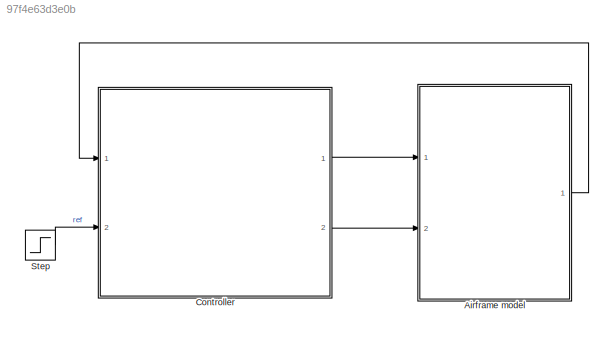
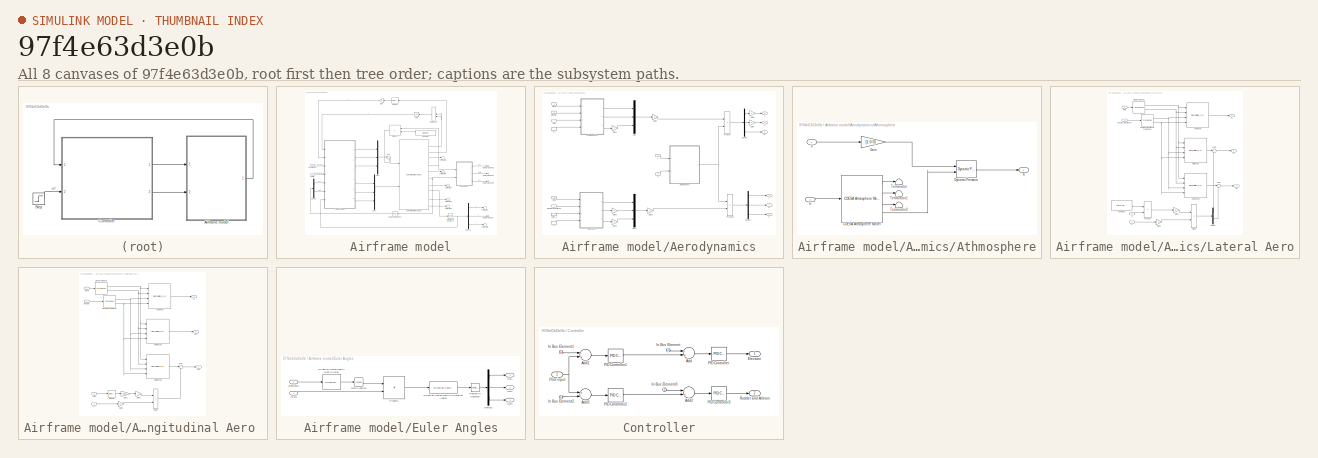
[diagram: thumbnail index - all 8 canvases of the model, root first then tree order]
MODEL slx_97f4e63d3e0b
KIND model
CONFIG AbsTol = auto
CONFIG EnableMultiTasking = off
CONFIG FixedStep = auto
CONFIG MaxStep = auto
CONFIG MinStep = auto
CONFIG RelTol = 1e-3
CONFIG SampleTimeConstraint = Unconstrained
CONFIG Solver = VariableStepAuto
CONFIG SolverName = VariableStepAuto
CONFIG StartTime = 0.0
CONFIG StopTime = 10.0
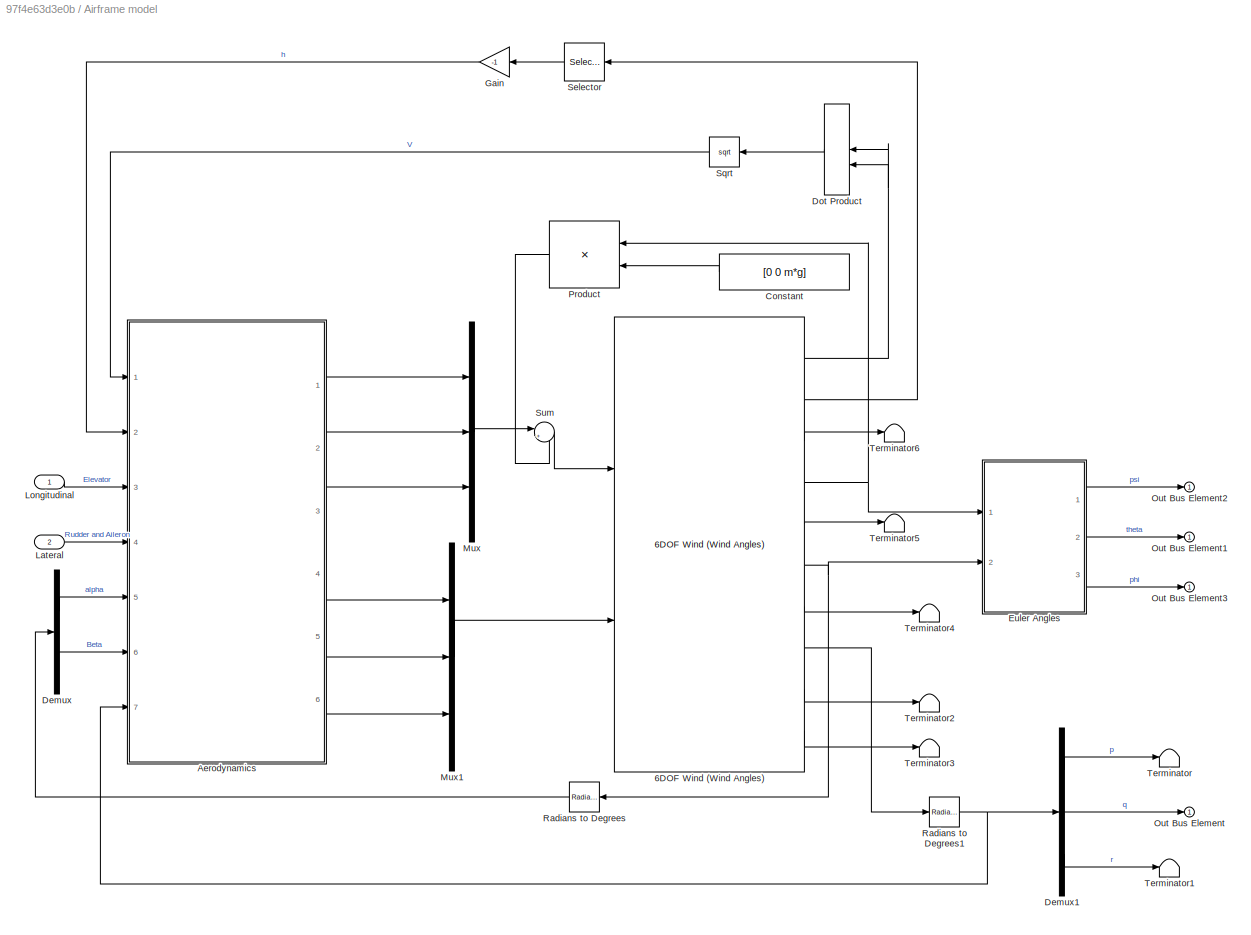
BLOCK [SubSystem] Airframe model
  Ports = [2, 1]
  RequestExecContextInheritance = off
BLOCK [Reference] Airframe model/6DOF Wind (Wind Angles)  REF=aerolib6dof2/6DOF Wind (Wind Angles)
  Ports = [2, 10]
  SourceBlock = aerolib6dof2/6DOF Wind (Wind Angles)
  SourceProductBaseCode = AE
  SourceProductName = Aerospace Blockset
  SourceType = 6DOF EoM (Wind Axis)
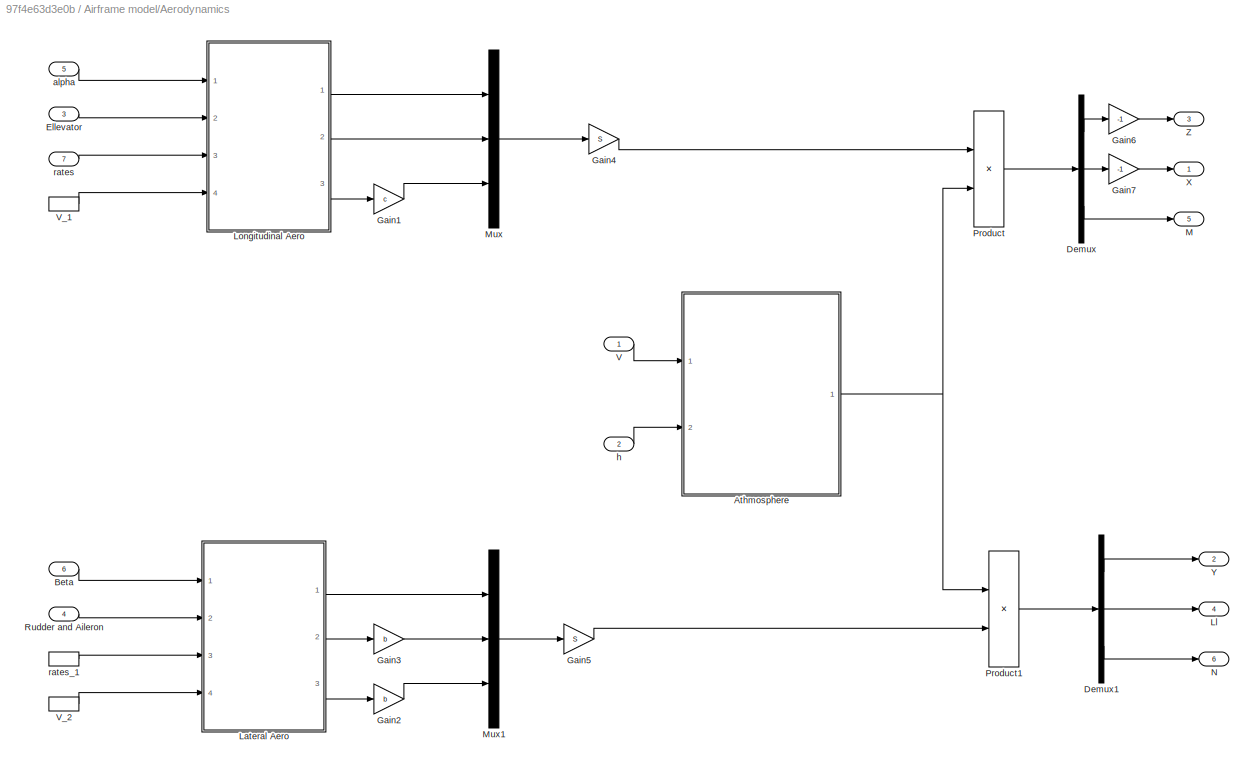
BLOCK [SubSystem] Airframe model/Aerodynamics
  Ports = [7, 6]
  RequestExecContextInheritance = off
BLOCK [SubSystem] Airframe model/Aerodynamics/Athmosphere
  Ports = [2, 1]
  RequestExecContextInheritance = off
BLOCK [Reference] Airframe model/Aerodynamics/Athmosphere/COESA Atmosphere Model  REF=aerolibatmos2/COESA Atmosphere Model
  Ports = [1, 4]
  SourceBlock = aerolibatmos2/COESA Atmosphere Model
  SourceProductBaseCode = AE
  SourceProductName = Aerospace Blockset
  SourceType = Atmosphere Model
BLOCK [Reference] Airframe model/Aerodynamics/Athmosphere/Dynamic Pressure  REF=aerolibasang/Dynamic Pressure
  Ports = [2, 1]
  SourceBlock = aerolibasang/Dynamic Pressure
  SourceProductBaseCode = AE
  SourceProductName = Aerospace Blockset
  SourceType = Dynamic Pressure
BLOCK [Gain] Airframe model/Aerodynamics/Athmosphere/Gain
  Gain = [1 0 0]
  OutDataTypeStr = Inherit: Inherit via internal rule
  ParamDataTypeStr = Inherit: Inherit via internal rule
  SaturateOnIntegerOverflow = off
BLOCK [Terminator] Airframe model/Aerodynamics/Athmosphere/Terminator
BLOCK [Terminator] Airframe model/Aerodynamics/Athmosphere/Terminator1
BLOCK [Terminator] Airframe model/Aerodynamics/Athmosphere/Terminator2
BLOCK [Inport] Airframe model/Aerodynamics/Athmosphere/V
  IconDisplay = Port number
BLOCK [Inport] Airframe model/Aerodynamics/Athmosphere/h
  IconDisplay = Port number
  Port = 2
BLOCK [Outport] Airframe model/Aerodynamics/Athmosphere/q
  IconDisplay = Port number
BLOCK [Inport] Airframe model/Aerodynamics/Beta
  IconDisplay = Port number
  Port = 6
BLOCK [Demux] Airframe model/Aerodynamics/Demux
  DisplayOption = bar
  Outputs = 3
  Ports = [1, 3]
BLOCK [Demux] Airframe model/Aerodynamics/Demux1
  DisplayOption = bar
  Outputs = 3
  Ports = [1, 3]
BLOCK [Inport] Airframe model/Aerodynamics/Ellevator
  IconDisplay = Port number
  Port = 3
BLOCK [Gain] Airframe model/Aerodynamics/Gain1
  Gain = c
  OutDataTypeStr = Inherit: Inherit via internal rule
  ParamDataTypeStr = Inherit: Inherit via internal rule
  SaturateOnIntegerOverflow = off
BLOCK [Gain] Airframe model/Aerodynamics/Gain2
  Gain = b
  OutDataTypeStr = Inherit: Inherit via internal rule
  ParamDataTypeStr = Inherit: Inherit via internal rule
  SaturateOnIntegerOverflow = off
BLOCK [Gain] Airframe model/Aerodynamics/Gain3
  Gain = b
  OutDataTypeStr = Inherit: Inherit via internal rule
  ParamDataTypeStr = Inherit: Inherit via internal rule
  SaturateOnIntegerOverflow = off
BLOCK [Gain] Airframe model/Aerodynamics/Gain4
  Gain = S
  OutDataTypeStr = Inherit: Inherit via internal rule
  ParamDataTypeStr = Inherit: Inherit via internal rule
  SaturateOnIntegerOverflow = off
BLOCK [Gain] Airframe model/Aerodynamics/Gain5
  Gain = S
  OutDataTypeStr = Inherit: Inherit via internal rule
  ParamDataTypeStr = Inherit: Inherit via internal rule
  SaturateOnIntegerOverflow = off
BLOCK [Gain] Airframe model/Aerodynamics/Gain6
  Gain = -1
  OutDataTypeStr = Inherit: Inherit via internal rule
  ParamDataTypeStr = Inherit: Inherit via internal rule
  SaturateOnIntegerOverflow = off
BLOCK [Gain] Airframe model/Aerodynamics/Gain7
  Gain = -1
  OutDataTypeStr = Inherit: Inherit via internal rule
  ParamDataTypeStr = Inherit: Inherit via internal rule
  SaturateOnIntegerOverflow = off
BLOCK [SubSystem] Airframe model/Aerodynamics/Lateral Aero
  Ports = [4, 3]
  RequestExecContextInheritance = off
BLOCK [Inport] Airframe model/Aerodynamics/Lateral Aero/Beta
  IconDisplay = Port number
BLOCK [PreLookup] Airframe model/Aerodynamics/Lateral Aero/Beta prelookup 
  BreakpointsData = Beta
  ExtrapMethod = Linear
  InputPortMap = u0
  Ports = [1, 2]
BLOCK [Outport] Airframe model/Aerodynamics/Lateral Aero/CY
  IconDisplay = Port number
BLOCK [Interpolation_n-D] Airframe model/Aerodynamics/Lateral Aero/CY lookup
  InputPortMap = u0,u1,u2,u3
  IntermediateResultsDataTypeStr = Inherit: Inherit via internal rule
  InternalRulePriority = Speed
  Ports = [4, 1]
  Table = CY
BLOCK [Outport] Airframe model/Aerodynamics/Lateral Aero/Cl
  IconDisplay = Port number
  Port = 2
BLOCK [Interpolation_n-D] Airframe model/Aerodynamics/Lateral Aero/Cl lookup1
  InputPortMap = u0,u1,u2,u3
  IntermediateResultsDataTypeStr = Inherit: Inherit via internal rule
  InternalRulePriority = Speed
  Ports = [4, 1]
  Table = Cl
BLOCK [Outport] Airframe model/Aerodynamics/Lateral Aero/Cn
  IconDisplay = Port number
  Port = 3
BLOCK [Interpolation_n-D] Airframe model/Aerodynamics/Lateral Aero/Cn lookup2
  InputPortMap = u0,u1,u2,u3
  IntermediateResultsDataTypeStr = Inherit: Inherit via internal rule
  InternalRulePriority = Speed
  Ports = [4, 1]
  Table = Cn
BLOCK [Constant] Airframe model/Aerodynamics/Lateral Aero/Constant
  Value = [Clp 0 Clr; Cnp 0 Cnr]
BLOCK [Demux] Airframe model/Aerodynamics/Lateral Aero/Demux
  DisplayOption = bar
  Outputs = 2
  Ports = [1, 2]
BLOCK [Product] Airframe model/Aerodynamics/Lateral Aero/Divide
  InputSameDT = off
  Inputs = */
  OutDataTypeStr = Inherit: Inherit via internal rule
  Ports = [2, 1]
  RndMeth = Floor
  SaturateOnIntegerOverflow = off
BLOCK [Gain] Airframe model/Aerodynamics/Lateral Aero/Gain5
  Gain = b
  OutDataTypeStr = Inherit: Inherit via internal rule
  ParamDataTypeStr = Inherit: Inherit via internal rule
  SaturateOnIntegerOverflow = off
BLOCK [Gain] Airframe model/Aerodynamics/Lateral Aero/Gain6
  Gain = 2
  OutDataTypeStr = Inherit: Inherit via internal rule
  ParamDataTypeStr = Inherit: Inherit via internal rule
  SaturateOnIntegerOverflow = off
BLOCK [Product] Airframe model/Aerodynamics/Lateral Aero/Product
  InputSameDT = off
  Multiplication = Matrix(*)
  OutDataTypeStr = Inherit: Inherit via internal rule
  Ports = [2, 1]
  RndMeth = Floor
  SaturateOnIntegerOverflow = off
BLOCK [Inport] Airframe model/Aerodynamics/Lateral Aero/Rudder and Aileron
  IconDisplay = Port number
  Port = 2
BLOCK [PreLookup] Airframe model/Aerodynamics/Lateral Aero/Rudder and Aileron prelookup
  BreakpointsData = Rudder
  ExtrapMethod = Linear
  InputPortMap = u0
  Ports = [1, 2]
BLOCK [Sum] Airframe model/Aerodynamics/Lateral Aero/Sum
  IconShape = round
  InputSameDT = off
  Inputs = |++
  OutDataTypeStr = Inherit: Inherit via internal rule
  Ports = [2, 1]
  SaturateOnIntegerOverflow = off
BLOCK [Sum] Airframe model/Aerodynamics/Lateral Aero/Sum1
  IconShape = round
  InputSameDT = off
  Inputs = |++
  OutDataTypeStr = Inherit: Inherit via internal rule
  Ports = [2, 1]
  SaturateOnIntegerOverflow = off
BLOCK [Inport] Airframe model/Aerodynamics/Lateral Aero/V 
  IconDisplay = Port number
  Port = 4
BLOCK [Inport] Airframe model/Aerodynamics/Lateral Aero/q
  IconDisplay = Port number
  Port = 3
  PortDimensions = 3
BLOCK [Outport] Airframe model/Aerodynamics/Ll
  IconDisplay = Port number
  Port = 4
BLOCK [SubSystem] Airframe model/Aerodynamics/Longitudinal Aero 
  Ports = [4, 3]
  RequestExecContextInheritance = off
BLOCK [Inport] Airframe model/Aerodynamics/Longitudinal Aero /Alpha
  IconDisplay = Port number
BLOCK [PreLookup] Airframe model/Aerodynamics/Longitudinal Aero /Alpha prelookup 
  BreakpointsData = alpha
  ExtrapMethod = Linear
  InputPortMap = u0
  Ports = [1, 2]
BLOCK [Outport] Airframe model/Aerodynamics/Longitudinal Aero /CD
  IconDisplay = Port number
  Port = 2
BLOCK [Interpolation_n-D] Airframe model/Aerodynamics/Longitudinal Aero /CD lookup1
  InputPortMap = u0,u1,u2,u3
  IntermediateResultsDataTypeStr = Inherit: Inherit via internal rule
  InternalRulePriority = Speed
  Ports = [4, 1]
  Table = CD
BLOCK [Outport] Airframe model/Aerodynamics/Longitudinal Aero /CL
  IconDisplay = Port number
BLOCK [Interpolation_n-D] Airframe model/Aerodynamics/Longitudinal Aero /CL lookup
  InputPortMap = u0,u1,u2,u3
  IntermediateResultsDataTypeStr = Inherit: Inherit via internal rule
  InternalRulePriority = Speed
  Ports = [4, 1]
  Table = CL
BLOCK [Outport] Airframe model/Aerodynamics/Longitudinal Aero /Cm
  IconDisplay = Port number
  Port = 3
BLOCK [Interpolation_n-D] Airframe model/Aerodynamics/Longitudinal Aero /Cm lookup2
  InputPortMap = u0,u1,u2,u3
  IntermediateResultsDataTypeStr = Inherit: Inherit via internal rule
  InternalRulePriority = Speed
  Ports = [4, 1]
  Table = Cm
BLOCK [Product] Airframe model/Aerodynamics/Longitudinal Aero /Divide
  InputSameDT = off
  Inputs = */
  OutDataTypeStr = Inherit: Inherit via internal rule
  Ports = [2, 1]
  RndMeth = Floor
  SaturateOnIntegerOverflow = off
BLOCK [Inport] Airframe model/Aerodynamics/Longitudinal Aero /Elevator
  IconDisplay = Port number
  Port = 2
BLOCK [PreLookup] Airframe model/Aerodynamics/Longitudinal Aero /Elevator prelookup
  BreakpointsData = Elevator
  ExtrapMethod = Linear
  InputPortMap = u0
  Ports = [1, 2]
BLOCK [Gain] Airframe model/Aerodynamics/Longitudinal Aero /Gain1
  Gain = Cmq
  OutDataTypeStr = Inherit: Inherit via internal rule
  ParamDataTypeStr = Inherit: Inherit via internal rule
  SaturateOnIntegerOverflow = off
BLOCK [Gain] Airframe model/Aerodynamics/Longitudinal Aero /Gain5
  Gain = c
  OutDataTypeStr = Inherit: Inherit via internal rule
  ParamDataTypeStr = Inherit: Inherit via internal rule
  SaturateOnIntegerOverflow = off
BLOCK [Gain] Airframe model/Aerodynamics/Longitudinal Aero /Gain6
  Gain = 2
  OutDataTypeStr = Inherit: Inherit via internal rule
  ParamDataTypeStr = Inherit: Inherit via internal rule
  SaturateOnIntegerOverflow = off
BLOCK [Selector] Airframe model/Aerodynamics/Longitudinal Aero /Selector
  IndexOptions = Index vector (dialog)
  Indices = 2
  InputPortWidth = 3
  OutputSizes = 1
  Ports = [1, 1]
BLOCK [Sum] Airframe model/Aerodynamics/Longitudinal Aero /Sum
  IconShape = round
  InputSameDT = off
  Inputs = |++
  OutDataTypeStr = Inherit: Inherit via internal rule
  Ports = [2, 1]
  SaturateOnIntegerOverflow = off
BLOCK [Inport] Airframe model/Aerodynamics/Longitudinal Aero /V 
  IconDisplay = Port number
  Port = 4
BLOCK [Inport] Airframe model/Aerodynamics/Longitudinal Aero /rates
  IconDisplay = Port number
  Port = 3
BLOCK [Outport] Airframe model/Aerodynamics/M
  IconDisplay = Port number
  Port = 5
BLOCK [Mux] Airframe model/Aerodynamics/Mux
  DisplayOption = bar
  Inputs = 3
  Ports = [3, 1]
BLOCK [Mux] Airframe model/Aerodynamics/Mux1
  DisplayOption = bar
  Inputs = 3
  Ports = [3, 1]
BLOCK [Outport] Airframe model/Aerodynamics/N
  IconDisplay = Port number
  Port = 6
BLOCK [Product] Airframe model/Aerodynamics/Product
  InputSameDT = off
  OutDataTypeStr = Inherit: Inherit via internal rule
  Ports = [2, 1]
  RndMeth = Floor
  SaturateOnIntegerOverflow = off
BLOCK [Product] Airframe model/Aerodynamics/Product1
  InputSameDT = off
  OutDataTypeStr = Inherit: Inherit via internal rule
  Ports = [2, 1]
  RndMeth = Floor
  SaturateOnIntegerOverflow = off
BLOCK [Inport] Airframe model/Aerodynamics/Rudder and Aileron
  IconDisplay = Port number
  Port = 4
BLOCK [Inport] Airframe model/Aerodynamics/V
  IconDisplay = Port number
BLOCK [InportShadow] Airframe model/Aerodynamics/V_1
  IconDisplay = Port number
BLOCK [InportShadow] Airframe model/Aerodynamics/V_2
  IconDisplay = Port number
BLOCK [Outport] Airframe model/Aerodynamics/X
  IconDisplay = Port number
BLOCK [Outport] Airframe model/Aerodynamics/Y
  IconDisplay = Port number
  Port = 2
BLOCK [Outport] Airframe model/Aerodynamics/Z
  IconDisplay = Port number
  Port = 3
BLOCK [Inport] Airframe model/Aerodynamics/alpha
  IconDisplay = Port number
  Port = 5
BLOCK [Inport] Airframe model/Aerodynamics/h
  IconDisplay = Port number
  Port = 2
BLOCK [Inport] Airframe model/Aerodynamics/rates
  IconDisplay = Port number
  Port = 7
BLOCK [InportShadow] Airframe model/Aerodynamics/rates_1
  IconDisplay = Port number
  Port = 7
BLOCK [Constant] Airframe model/Constant
  Value = [0 0 m*g]
BLOCK [Demux] Airframe model/Demux
  DisplayOption = bar
  Outputs = 2
  Ports = [1, 2]
BLOCK [Demux] Airframe model/Demux1
  DisplayOption = bar
  Outputs = 3
  Ports = [1, 3]
BLOCK [DotProduct] Airframe model/Dot Product
  OutDataTypeStr = Inherit: Inherit via internal rule
BLOCK [SubSystem] Airframe model/Euler Angles
  Ports = [2, 3]
  RequestExecContextInheritance = off
BLOCK [Inport] Airframe model/Euler Angles/CE2W
  IconDisplay = Port number
BLOCK [Demux] Airframe model/Euler Angles/Demux2
  DisplayOption = bar
  Outputs = 3
  Ports = [1, 3]
BLOCK [Reference] Airframe model/Euler Angles/Direction Cosine Matrix Body to Wind  REF=aerolibtransform2/Direction Cosine Matrix
Body to Wind
  Ports = [1, 1]
  SourceBlock = aerolibtransform2/Direction Cosine Matrix\nBody to Wind
  SourceProductBaseCode = AE
  SourceProductName = Aerospace Blockset
  SourceType = DCM Body to Wind
BLOCK [Reference] Airframe model/Euler Angles/Direction Cosine Matrix to Rotation Angles  REF=sharedtransform/Direction Cosine Matrix
to Rotation Angles
  AttributesFormatString = Rotation Order: %<rotationOrder>
  Ports = [1, 1]
  SourceBlock = sharedtransform/Direction Cosine Matrix\nto Rotation Angles
  SourceProductBaseCode = AE
  SourceProductName = Aerospace Blockset
  SourceType = DCM2Ang
BLOCK [Math] Airframe model/Euler Angles/Math Function
  Operator = transpose
  Ports = [1, 1]
BLOCK [Outport] Airframe model/Euler Angles/Out1
  IconDisplay = Port number
BLOCK [Outport] Airframe model/Euler Angles/Out2
  IconDisplay = Port number
  Port = 2
BLOCK [Outport] Airframe model/Euler Angles/Out3
  IconDisplay = Port number
  Port = 3
BLOCK [Product] Airframe model/Euler Angles/Product1
  InputSameDT = off
  Multiplication = Matrix(*)
  OutDataTypeStr = Inherit: Inherit via internal rule
  Ports = [2, 1]
  RndMeth = Floor
  SaturateOnIntegerOverflow = off
BLOCK [Reference] Airframe model/Euler Angles/Radians to Degrees2  REF=simulink_extras/Transformations/Radians
to Degrees
  Ports = [1, 1]
  SourceBlock = simulink_extras/Transformations/Radians\nto Degrees
  SourceProductBaseCode = SL
  SourceProductName = Simulink
  SourceType = RadiansToDegrees
BLOCK [Inport] Airframe model/Euler Angles/alpha beta
  IconDisplay = Port number
  Port = 2
BLOCK [Gain] Airframe model/Gain
  Gain = -1
  OutDataTypeStr = Inherit: Inherit via internal rule
  ParamDataTypeStr = Inherit: Inherit via internal rule
  SaturateOnIntegerOverflow = off
BLOCK [Inport] Airframe model/Lateral
  IconDisplay = Port number
  Port = 2
BLOCK [Inport] Airframe model/Longitudinal
  IconDisplay = Port number
BLOCK [Mux] Airframe model/Mux
  DisplayOption = bar
  Inputs = 3
  Ports = [3, 1]
BLOCK [Mux] Airframe model/Mux1
  DisplayOption = bar
  Inputs = 3
  Ports = [3, 1]
BLOCK [Outport] Airframe model/Out Bus Element
  IconDisplay = Port number
BLOCK [Outport] Airframe model/Out Bus Element1
  IconDisplay = Port number
BLOCK [Outport] Airframe model/Out Bus Element2
  IconDisplay = Port number
BLOCK [Outport] Airframe model/Out Bus Element3
  IconDisplay = Port number
BLOCK [Product] Airframe model/Product
  InputSameDT = off
  Multiplication = Matrix(*)
  OutDataTypeStr = Inherit: Inherit via internal rule
  Ports = [2, 1]
  RndMeth = Floor
  SaturateOnIntegerOverflow = off
BLOCK [Reference] Airframe model/Radians to Degrees  REF=simulink_extras/Transformations/Radians
to Degrees
  Ports = [1, 1]
  SourceBlock = simulink_extras/Transformations/Radians\nto Degrees
  SourceProductBaseCode = SL
  SourceProductName = Simulink
  SourceType = RadiansToDegrees
BLOCK [Reference] Airframe model/Radians to Degrees1  REF=simulink_extras/Transformations/Radians
to Degrees
  Ports = [1, 1]
  SourceBlock = simulink_extras/Transformations/Radians\nto Degrees
  SourceProductBaseCode = SL
  SourceProductName = Simulink
  SourceType = RadiansToDegrees
BLOCK [Selector] Airframe model/Selector
  IndexOptions = Index vector (dialog)
  Indices = 3
  InputPortWidth = 3
  OutputSizes = 1
  Ports = [1, 1]
BLOCK [Sqrt] Airframe model/Sqrt
BLOCK [Sum] Airframe model/Sum
  IconShape = round
  InputSameDT = off
  Inputs = |++
  OutDataTypeStr = Inherit: Inherit via internal rule
  Ports = [2, 1]
  SaturateOnIntegerOverflow = off
BLOCK [Terminator] Airframe model/Terminator
BLOCK [Terminator] Airframe model/Terminator1
BLOCK [Terminator] Airframe model/Terminator2
BLOCK [Terminator] Airframe model/Terminator3
BLOCK [Terminator] Airframe model/Terminator4
BLOCK [Terminator] Airframe model/Terminator5
BLOCK [Terminator] Airframe model/Terminator6
BLOCK [SubSystem] Controller
  Ports = [2, 2]
  RequestExecContextInheritance = off
BLOCK [Sum] Controller/Add
  InputSameDT = off
  Inputs = -+
  OutDataTypeStr = Inherit: Inherit via internal rule
  Ports = [2, 1]
  SaturateOnIntegerOverflow = off
BLOCK [Sum] Controller/Add1
  InputSameDT = off
  Inputs = -+
  OutDataTypeStr = Inherit: Inherit via internal rule
  Ports = [2, 1]
  SaturateOnIntegerOverflow = off
BLOCK [Sum] Controller/Add2
  InputSameDT = off
  Inputs = -+
  OutDataTypeStr = Inherit: Inherit via internal rule
  Ports = [2, 1]
  SaturateOnIntegerOverflow = off
BLOCK [Sum] Controller/Add3
  InputSameDT = off
  Inputs = +-
  OutDataTypeStr = Inherit: Inherit via internal rule
  Ports = [2, 1]
  SaturateOnIntegerOverflow = off
BLOCK [Outport] Controller/Elevator
  IconDisplay = Port number
BLOCK [Inport] Controller/In Bus Element
  IconDisplay = Port number
BLOCK [Inport] Controller/In Bus Element1
  IconDisplay = Port number
BLOCK [Inport] Controller/In Bus Element2
  IconDisplay = Port number
BLOCK [Inport] Controller/In Bus Element3
  IconDisplay = Port number
BLOCK [Reference] Controller/PID Controller  REF=simulink/Continuous/PID Controller
  Ports = [1, 1]
  SourceBlock = simulink/Continuous/PID Controller
  SourceProductBaseCode = SL
  SourceProductName = Simulink
  SourceType = PID 1dof
BLOCK [Reference] Controller/PID Controller1  REF=simulink/Continuous/PID Controller
  Ports = [1, 1]
  SourceBlock = simulink/Continuous/PID Controller
  SourceProductBaseCode = SL
  SourceProductName = Simulink
  SourceType = PID 1dof
BLOCK [Reference] Controller/PID Controller2  REF=simulink/Continuous/PID Controller
  Ports = [1, 1]
  SourceBlock = simulink/Continuous/PID Controller
  SourceProductBaseCode = SL
  SourceProductName = Simulink
  SourceType = PID 1dof
BLOCK [Reference] Controller/PID Controller3  REF=simulink/Continuous/PID Controller
  Ports = [1, 1]
  SourceBlock = simulink/Continuous/PID Controller
  SourceProductBaseCode = SL
  SourceProductName = Simulink
  SourceType = PID 1dof
BLOCK [Inport] Controller/Pilot input
  IconDisplay = Port number
  Port = 2
BLOCK [Outport] Controller/Rudder and Aileron
  IconDisplay = Port number
  Port = 2
BLOCK [Step] Step
  SampleTime = 0
  Time = 5
NET Airframe model/6DOF Wind (Wind Angles):1 -> Airframe model/Dot Product:1, Airframe model/Dot Product:2
LINE Airframe model/6DOF Wind (Wind Angles):10 -> Airframe model/Terminator3:1
LINE Airframe model/6DOF Wind (Wind Angles):2 -> Airframe model/Selector:1
LINE Airframe model/6DOF Wind (Wind Angles):3 -> Airframe model/Terminator6:1
NET Airframe model/6DOF Wind (Wind Angles):4 -> Airframe model/Euler Angles:1, Airframe model/Product:1
LINE Airframe model/6DOF Wind (Wind Angles):5 -> Airframe model/Terminator5:1
NET Airframe model/6DOF Wind (Wind Angles):6 -> Airframe model/Euler Angles:2, Airframe model/Radians to Degrees:1
LINE Airframe model/6DOF Wind (Wind Angles):7 -> Airframe model/Terminator4:1
LINE Airframe model/6DOF Wind (Wind Angles):8 -> Airframe model/Radians to Degrees1:1
LINE Airframe model/6DOF Wind (Wind Angles):9 -> Airframe model/Terminator2:1
LINE Airframe model/Aerodynamics/Athmosphere/COESA Atmosphere Model:1 -> Airframe model/Aerodynamics/Athmosphere/Terminator:1
LINE Airframe model/Aerodynamics/Athmosphere/COESA Atmosphere Model:2 -> Airframe model/Aerodynamics/Athmosphere/Terminator1:1
LINE Airframe model/Aerodynamics/Athmosphere/COESA Atmosphere Model:3 -> Airframe model/Aerodynamics/Athmosphere/Terminator2:1
LINE Airframe model/Aerodynamics/Athmosphere/COESA Atmosphere Model:4 -> Airframe model/Aerodynamics/Athmosphere/Dynamic Pressure:2
LINE Airframe model/Aerodynamics/Athmosphere/Dynamic Pressure:1 -> Airframe model/Aerodynamics/Athmosphere/q:1
LINE Airframe model/Aerodynamics/Athmosphere/Gain:1 -> Airframe model/Aerodynamics/Athmosphere/Dynamic Pressure:1
LINE Airframe model/Aerodynamics/Athmosphere/V:1 -> Airframe model/Aerodynamics/Athmosphere/Gain:1
LINE Airframe model/Aerodynamics/Athmosphere/h:1 -> Airframe model/Aerodynamics/Athmosphere/COESA Atmosphere Model:1
NET Airframe model/Aerodynamics/Athmosphere:1 -> Airframe model/Aerodynamics/Product1:1, Airframe model/Aerodynamics/Product:2
LINE Airframe model/Aerodynamics/Beta:1 -> Airframe model/Aerodynamics/Lateral Aero:1
LINE Airframe model/Aerodynamics/Demux1:1 -> Airframe model/Aerodynamics/Y:1
LINE Airframe model/Aerodynamics/Demux1:2 -> Airframe model/Aerodynamics/Ll:1
LINE Airframe model/Aerodynamics/Demux1:3 -> Airframe model/Aerodynamics/N:1
LINE Airframe model/Aerodynamics/Demux:1 -> Airframe model/Aerodynamics/Gain6:1
LINE Airframe model/Aerodynamics/Demux:2 -> Airframe model/Aerodynamics/Gain7:1
LINE Airframe model/Aerodynamics/Demux:3 -> Airframe model/Aerodynamics/M:1
LINE Airframe model/Aerodynamics/Ellevator:1 -> Airframe model/Aerodynamics/Longitudinal Aero :2
LINE Airframe model/Aerodynamics/Gain1:1 -> Airframe model/Aerodynamics/Mux:3
LINE Airframe model/Aerodynamics/Gain2:1 -> Airframe model/Aerodynamics/Mux1:3
LINE Airframe model/Aerodynamics/Gain3:1 -> Airframe model/Aerodynamics/Mux1:2
LINE Airframe model/Aerodynamics/Gain4:1 -> Airframe model/Aerodynamics/Product:1
LINE Airframe model/Aerodynamics/Gain5:1 -> Airframe model/Aerodynamics/Product1:2
LINE Airframe model/Aerodynamics/Gain6:1 -> Airframe model/Aerodynamics/Z:1
LINE Airframe model/Aerodynamics/Gain7:1 -> Airframe model/Aerodynamics/X:1
NET Airframe model/Aerodynamics/Lateral Aero/Beta prelookup :1 -> Airframe model/Aerodynamics/Lateral Aero/CY lookup:1, Airframe model/Aerodynamics/Lateral Aero/Cl lookup1:1, Airframe model/Aerodynamics/Lateral Aero/Cn lookup2:1
NET Airframe model/Aerodynamics/Lateral Aero/Beta prelookup :2 -> Airframe model/Aerodynamics/Lateral Aero/CY lookup:2, Airframe model/Aerodynamics/Lateral Aero/Cl lookup1:2, Airframe model/Aerodynamics/Lateral Aero/Cn lookup2:2
LINE Airframe model/Aerodynamics/Lateral Aero/Beta:1 -> Airframe model/Aerodynamics/Lateral Aero/Beta prelookup :1
LINE Airframe model/Aerodynamics/Lateral Aero/CY lookup:1 -> Airframe model/Aerodynamics/Lateral Aero/CY:1
LINE Airframe model/Aerodynamics/Lateral Aero/Cl lookup1:1 -> Airframe model/Aerodynamics/Lateral Aero/Sum1:1
LINE Airframe model/Aerodynamics/Lateral Aero/Cn lookup2:1 -> Airframe model/Aerodynamics/Lateral Aero/Sum:1
LINE Airframe model/Aerodynamics/Lateral Aero/Constant:1 -> Airframe model/Aerodynamics/Lateral Aero/Product:1
LINE Airframe model/Aerodynamics/Lateral Aero/Demux:1 -> Airframe model/Aerodynamics/Lateral Aero/Sum1:2
LINE Airframe model/Aerodynamics/Lateral Aero/Demux:2 -> Airframe model/Aerodynamics/Lateral Aero/Sum:2
LINE Airframe model/Aerodynamics/Lateral Aero/Divide:1 -> Airframe model/Aerodynamics/Lateral Aero/Demux:1
LINE Airframe model/Aerodynamics/Lateral Aero/Gain5:1 -> Airframe model/Aerodynamics/Lateral Aero/Divide:1
LINE Airframe model/Aerodynamics/Lateral Aero/Gain6:1 -> Airframe model/Aerodynamics/Lateral Aero/Divide:2
LINE Airframe model/Aerodynamics/Lateral Aero/Product:1 -> Airframe model/Aerodynamics/Lateral Aero/Gain5:1
NET Airframe model/Aerodynamics/Lateral Aero/Rudder and Aileron prelookup:1 -> Airframe model/Aerodynamics/Lateral Aero/CY lookup:3, Airframe model/Aerodynamics/Lateral Aero/Cl lookup1:3, Airframe model/Aerodynamics/Lateral Aero/Cn lookup2:3
NET Airframe model/Aerodynamics/Lateral Aero/Rudder and Aileron prelookup:2 -> Airframe model/Aerodynamics/Lateral Aero/CY lookup:4, Airframe model/Aerodynamics/Lateral Aero/Cl lookup1:4, Airframe model/Aerodynamics/Lateral Aero/Cn lookup2:4
LINE Airframe model/Aerodynamics/Lateral Aero/Rudder and Aileron:1 -> Airframe model/Aerodynamics/Lateral Aero/Rudder and Aileron prelookup:1
LINE Airframe model/Aerodynamics/Lateral Aero/Sum1:1 -> Airframe model/Aerodynamics/Lateral Aero/Cl:1
LINE Airframe model/Aerodynamics/Lateral Aero/Sum:1 -> Airframe model/Aerodynamics/Lateral Aero/Cn:1
LINE Airframe model/Aerodynamics/Lateral Aero/V :1 -> Airframe model/Aerodynamics/Lateral Aero/Gain6:1
LINE Airframe model/Aerodynamics/Lateral Aero/q:1 -> Airframe model/Aerodynamics/Lateral Aero/Product:2
LINE Airframe model/Aerodynamics/Lateral Aero:1 -> Airframe model/Aerodynamics/Mux1:1
LINE Airframe model/Aerodynamics/Lateral Aero:2 -> Airframe model/Aerodynamics/Gain3:1
LINE Airframe model/Aerodynamics/Lateral Aero:3 -> Airframe model/Aerodynamics/Gain2:1
NET Airframe model/Aerodynamics/Longitudinal Aero /Alpha prelookup :1 -> Airframe model/Aerodynamics/Longitudinal Aero /CD lookup1:1, Airframe model/Aerodynamics/Longitudinal Aero /CL lookup:1, Airframe model/Aerodynamics/Longitudinal Aero /Cm lookup2:1
NET Airframe model/Aerodynamics/Longitudinal Aero /Alpha prelookup :2 -> Airframe model/Aerodynamics/Longitudinal Aero /CD lookup1:2, Airframe model/Aerodynamics/Longitudinal Aero /CL lookup:2, Airframe model/Aerodynamics/Longitudinal Aero /Cm lookup2:2
LINE Airframe model/Aerodynamics/Longitudinal Aero /Alpha:1 -> Airframe model/Aerodynamics/Longitudinal Aero /Alpha prelookup :1
LINE Airframe model/Aerodynamics/Longitudinal Aero /CD lookup1:1 -> Airframe model/Aerodynamics/Longitudinal Aero /CD:1
LINE Airframe model/Aerodynamics/Longitudinal Aero /CL lookup:1 -> Airframe model/Aerodynamics/Longitudinal Aero /CL:1
LINE Airframe model/Aerodynamics/Longitudinal Aero /Cm lookup2:1 -> Airframe model/Aerodynamics/Longitudinal Aero /Sum:1
LINE Airframe model/Aerodynamics/Longitudinal Aero /Divide:1 -> Airframe model/Aerodynamics/Longitudinal Aero /Sum:2
NET Airframe model/Aerodynamics/Longitudinal Aero /Elevator prelookup:1 -> Airframe model/Aerodynamics/Longitudinal Aero /CD lookup1:3, Airframe model/Aerodynamics/Longitudinal Aero /CL lookup:3, Airframe model/Aerodynamics/Longitudinal Aero /Cm lookup2:3
NET Airframe model/Aerodynamics/Longitudinal Aero /Elevator prelookup:2 -> Airframe model/Aerodynamics/Longitudinal Aero /CD lookup1:4, Airframe model/Aerodynamics/Longitudinal Aero /CL lookup:4, Airframe model/Aerodynamics/Longitudinal Aero /Cm lookup2:4
LINE Airframe model/Aerodynamics/Longitudinal Aero /Elevator:1 -> Airframe model/Aerodynamics/Longitudinal Aero /Elevator prelookup:1
LINE Airframe model/Aerodynamics/Longitudinal Aero /Gain1:1 -> Airframe model/Aerodynamics/Longitudinal Aero /Gain5:1
LINE Airframe model/Aerodynamics/Longitudinal Aero /Gain5:1 -> Airframe model/Aerodynamics/Longitudinal Aero /Divide:1
LINE Airframe model/Aerodynamics/Longitudinal Aero /Gain6:1 -> Airframe model/Aerodynamics/Longitudinal Aero /Divide:2
LINE Airframe model/Aerodynamics/Longitudinal Aero /Selector:1 -> Airframe model/Aerodynamics/Longitudinal Aero /Gain1:1
LINE Airframe model/Aerodynamics/Longitudinal Aero /Sum:1 -> Airframe model/Aerodynamics/Longitudinal Aero /Cm:1
LINE Airframe model/Aerodynamics/Longitudinal Aero /V :1 -> Airframe model/Aerodynamics/Longitudinal Aero /Gain6:1
LINE Airframe model/Aerodynamics/Longitudinal Aero /rates:1 -> Airframe model/Aerodynamics/Longitudinal Aero /Selector:1
LINE Airframe model/Aerodynamics/Longitudinal Aero :1 -> Airframe model/Aerodynamics/Mux:1
LINE Airframe model/Aerodynamics/Longitudinal Aero :2 -> Airframe model/Aerodynamics/Mux:2
LINE Airframe model/Aerodynamics/Longitudinal Aero :3 -> Airframe model/Aerodynamics/Gain1:1
LINE Airframe model/Aerodynamics/Mux1:1 -> Airframe model/Aerodynamics/Gain5:1
LINE Airframe model/Aerodynamics/Mux:1 -> Airframe model/Aerodynamics/Gain4:1
LINE Airframe model/Aerodynamics/Product1:1 -> Airframe model/Aerodynamics/Demux1:1
LINE Airframe model/Aerodynamics/Product:1 -> Airframe model/Aerodynamics/Demux:1
LINE Airframe model/Aerodynamics/Rudder and Aileron:1 -> Airframe model/Aerodynamics/Lateral Aero:2
LINE Airframe model/Aerodynamics/V:1 -> Airframe model/Aerodynamics/Athmosphere:1
LINE Airframe model/Aerodynamics/V_1:1 -> Airframe model/Aerodynamics/Longitudinal Aero :4
LINE Airframe model/Aerodynamics/V_2:1 -> Airframe model/Aerodynamics/Lateral Aero:4
LINE Airframe model/Aerodynamics/alpha:1 -> Airframe model/Aerodynamics/Longitudinal Aero :1
LINE Airframe model/Aerodynamics/h:1 -> Airframe model/Aerodynamics/Athmosphere:2
LINE Airframe model/Aerodynamics/rates:1 -> Airframe model/Aerodynamics/Longitudinal Aero :3
LINE Airframe model/Aerodynamics/rates_1:1 -> Airframe model/Aerodynamics/Lateral Aero:3
LINE Airframe model/Aerodynamics:1 -> Airframe model/Mux:1
LINE Airframe model/Aerodynamics:2 -> Airframe model/Mux:2
LINE Airframe model/Aerodynamics:3 -> Airframe model/Mux:3
LINE Airframe model/Aerodynamics:4 -> Airframe model/Mux1:1
LINE Airframe model/Aerodynamics:5 -> Airframe model/Mux1:2
LINE Airframe model/Aerodynamics:6 -> Airframe model/Mux1:3
LINE Airframe model/Constant:1 -> Airframe model/Product:2
LINE Airframe model/Demux1:1 -> Airframe model/Terminator:1
LINE Airframe model/Demux1:2 -> Airframe model/Out Bus Element:1
LINE Airframe model/Demux1:3 -> Airframe model/Terminator1:1
LINE Airframe model/Demux:1 -> Airframe model/Aerodynamics:5
LINE Airframe model/Demux:2 -> Airframe model/Aerodynamics:6
LINE Airframe model/Dot Product:1 -> Airframe model/Sqrt:1
LINE Airframe model/Euler Angles/CE2W:1 -> Airframe model/Euler Angles/Product1:2
LINE Airframe model/Euler Angles/Demux2:1 -> Airframe model/Euler Angles/Out1:1
LINE Airframe model/Euler Angles/Demux2:2 -> Airframe model/Euler Angles/Out2:1
LINE Airframe model/Euler Angles/Demux2:3 -> Airframe model/Euler Angles/Out3:1
LINE Airframe model/Euler Angles/Direction Cosine Matrix Body to Wind:1 -> Airframe model/Euler Angles/Math Function:1
LINE Airframe model/Euler Angles/Direction Cosine Matrix to Rotation Angles:1 -> Airframe model/Euler Angles/Radians to Degrees2:1
LINE Airframe model/Euler Angles/Math Function:1 -> Airframe model/Euler Angles/Product1:1
LINE Airframe model/Euler Angles/Product1:1 -> Airframe model/Euler Angles/Direction Cosine Matrix to Rotation Angles:1
LINE Airframe model/Euler Angles/Radians to Degrees2:1 -> Airframe model/Euler Angles/Demux2:1
LINE Airframe model/Euler Angles/alpha beta:1 -> Airframe model/Euler Angles/Direction Cosine Matrix Body to Wind:1
LINE Airframe model/Euler Angles:1 -> Airframe model/Out Bus Element2:1
LINE Airframe model/Euler Angles:2 -> Airframe model/Out Bus Element1:1
LINE Airframe model/Euler Angles:3 -> Airframe model/Out Bus Element3:1
LINE Airframe model/Gain:1 -> Airframe model/Aerodynamics:2
LINE Airframe model/Lateral:1 -> Airframe model/Aerodynamics:4
LINE Airframe model/Longitudinal:1 -> Airframe model/Aerodynamics:3
LINE Airframe model/Mux1:1 -> Airframe model/6DOF Wind (Wind Angles):2
LINE Airframe model/Mux:1 -> Airframe model/Sum:1
LINE Airframe model/Product:1 -> Airframe model/Sum:2
NET Airframe model/Radians to Degrees1:1 -> Airframe model/Aerodynamics:7, Airframe model/Demux1:1
LINE Airframe model/Radians to Degrees:1 -> Airframe model/Demux:1
LINE Airframe model/Selector:1 -> Airframe model/Gain:1
LINE Airframe model/Sqrt:1 -> Airframe model/Aerodynamics:1
LINE Airframe model/Sum:1 -> Airframe model/6DOF Wind (Wind Angles):1
LINE Airframe model:1 -> Controller:1
LINE Controller/Add1:1 -> Controller/PID Controller1:1
LINE Controller/Add2:1 -> Controller/PID Controller3:1
LINE Controller/Add3:1 -> Controller/PID Controller2:1
LINE Controller/Add:1 -> Controller/PID Controller:1
LINE Controller/In Bus Element1:1 -> Controller/Add1:1
LINE Controller/In Bus Element2:1 -> Controller/Add3:2
LINE Controller/In Bus Element3:1 -> Controller/Add2:1
LINE Controller/In Bus Element:1 -> Controller/Add:1
LINE Controller/PID Controller1:1 -> Controller/Add:2
LINE Controller/PID Controller2:1 -> Controller/Add2:2
LINE Controller/PID Controller3:1 -> Controller/Rudder and Aileron:1
LINE Controller/PID Controller:1 -> Controller/Elevator:1
NET Controller/Pilot input:1 -> Controller/Add1:2, Controller/Add3:1
LINE Controller:1 -> Airframe model:1
LINE Controller:2 -> Airframe model:2
LINE Step:1 -> Controller:2
note: NET lines group one-source signal fan-out (src -> all destinations, sorted); 1:1 wires keep LINE
